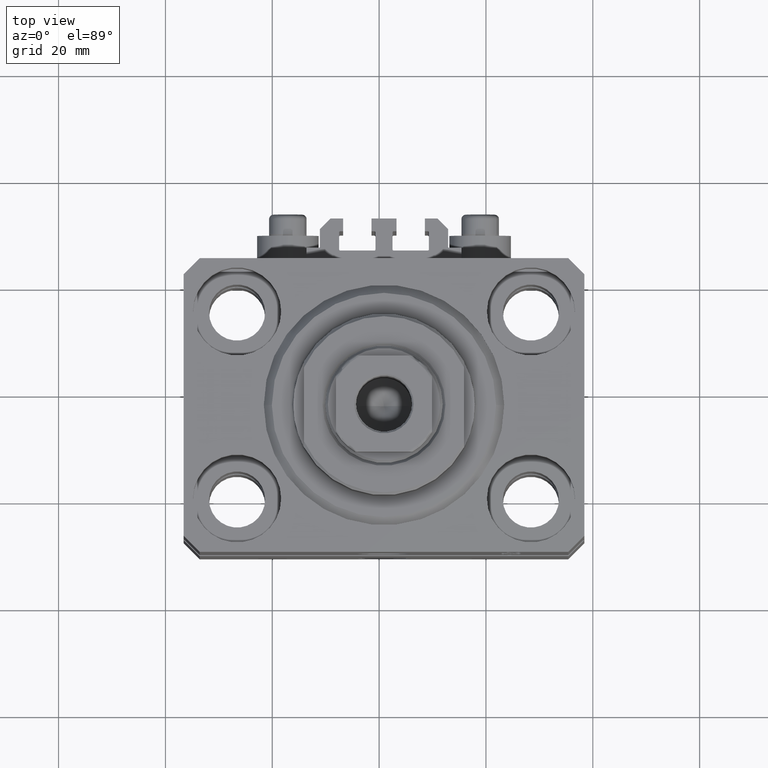
[diagram: clean part render]
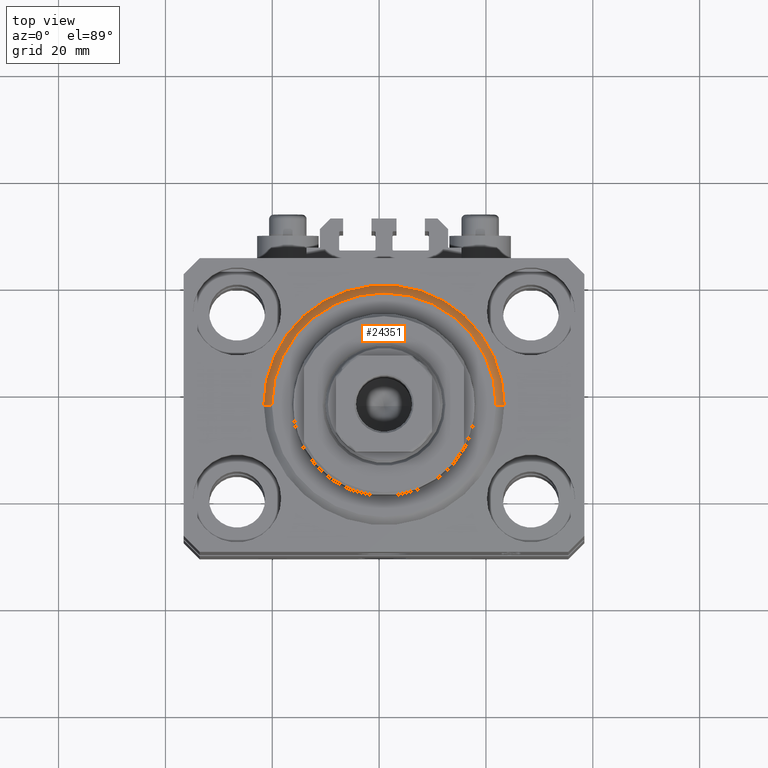
[diagram: same view with one face highlighted and labeled with its STEP entity id]
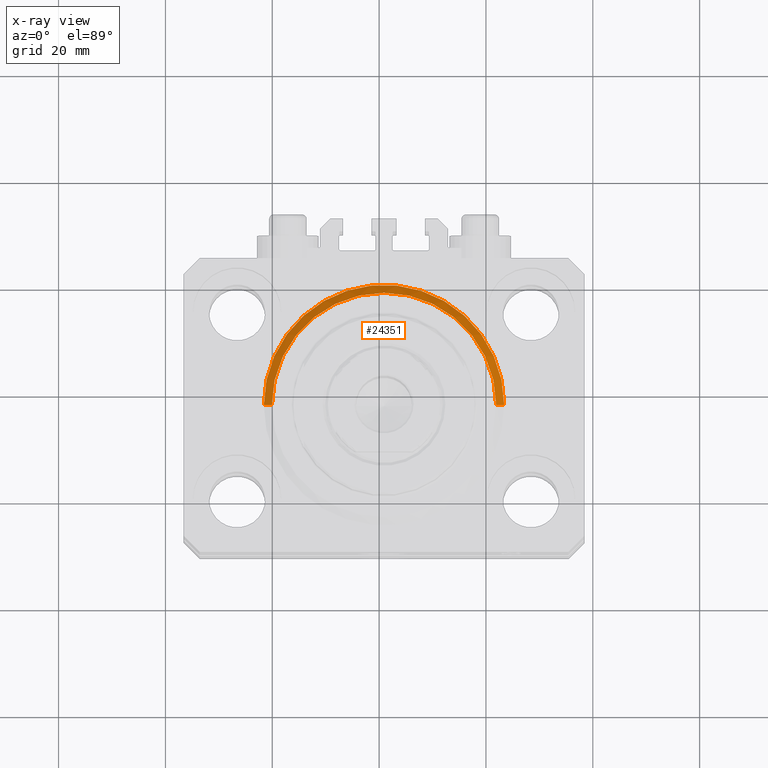
[diagram: x-ray of the same camera — body ghosted, the highlighted face saturated]
A machine part, top view. The second image highlights one B-rep face of the part: STEP entity #24351.
The next image is the same camera in x-ray: the body ghosted, the highlighted face saturated — about 0% of this face is hidden behind the body in this view.
In plain terms, the highlighted conical surface has half-angle 45 deg.
Its self-contained STEP definition (entity closure, byte-faithful):
#1103 = LINE ( 'NONE', #33312, #23780 ) ;
#1471 = EDGE_CURVE ( 'NONE', #39495, #28473, #29462, .T. ) ;
#2883 = CARTESIAN_POINT ( 'NONE',  ( 0.000000000000000000, 0.000000000000000000, 1.500000000000001332 ) ) ;
#3212 = ORIENTED_EDGE ( 'NONE', *, *, #4267, .F. ) ;
#3335 = EDGE_CURVE ( 'NONE', #28473, #23412, #32695, .T. ) ;
#4000 = CIRCLE ( 'NONE', #28199, 20.99999999999998934 ) ;
#4267 = EDGE_CURVE ( 'NONE', #34481, #39495, #4000, .T. ) ;
#4378 = DIRECTION ( 'NONE',  ( 1.000000000000000000, 0.000000000000000000, 0.000000000000000000 ) ) ;
#4709 = ORIENTED_EDGE ( 'NONE', *, *, #1471, .F. ) ;
#5830 = CARTESIAN_POINT ( 'NONE',  ( -22.50000000000000355, 0.000000000000000000, 1.500000000000001332 ) ) ;
#7207 = DIRECTION ( 'NONE',  ( 0.7071067811865500152, 0.000000000000000000, 0.7071067811865451302 ) ) ;
#8025 = DIRECTION ( 'NONE',  ( 1.000000000000000000, 0.000000000000000000, 0.000000000000000000 ) ) ;
#11742 = EDGE_CURVE ( 'NONE', #34481, #23412, #1103, .T. ) ;
#12290 = AXIS2_PLACEMENT_3D ( 'NONE', #33496, #15491, #4378 ) ;
#15491 = DIRECTION ( 'NONE',  ( -0.000000000000000000, -0.000000000000000000, 1.000000000000000000 ) ) ;
#18128 = ORIENTED_EDGE ( 'NONE', *, *, #3335, .F. ) ;
#21901 = DIRECTION ( 'NONE',  ( 1.000000000000000000, 0.000000000000000000, 0.000000000000000000 ) ) ;
#22185 = DIRECTION ( 'NONE',  ( -0.7071067811865500152, 8.659560562354963673E-17, 0.7071067811865451302 ) ) ;
#23412 = VERTEX_POINT ( 'NONE', #5830 ) ;
#23780 = VECTOR ( 'NONE', #22185, 1000.000000000000114 ) ;
#24351 = ADVANCED_FACE ( 'NONE', ( #26007 ), #25787, .T. ) ;
#25787 = CONICAL_SURFACE ( 'NONE', #39398, 22.50000000000000355, 0.7853981633974517207 ) ;
#25871 = VECTOR ( 'NONE', #7207, 1000.000000000000114 ) ;
#25900 = CARTESIAN_POINT ( 'NONE',  ( 22.50000000000000355, 0.000000000000000000, 1.500000000000001332 ) ) ;
#26007 = FACE_OUTER_BOUND ( 'NONE', #29195, .T. ) ;
#26622 = CARTESIAN_POINT ( 'NONE',  ( 0.000000000000000000, 0.000000000000000000, 0.000000000000000000 ) ) ;
#28199 = AXIS2_PLACEMENT_3D ( 'NONE', #26622, #29250, #21901 ) ;
#28473 = VERTEX_POINT ( 'NONE', #35599 ) ;
#29195 = EDGE_LOOP ( 'NONE', ( #3212, #41727, #18128, #4709 ) ) ;
#29250 = DIRECTION ( 'NONE',  ( -0.000000000000000000, -0.000000000000000000, -1.000000000000000000 ) ) ;
#29462 = LINE ( 'NONE', #25900, #25871 ) ;
#32695 = CIRCLE ( 'NONE', #12290, 22.50000000000000355 ) ;
#32954 = CARTESIAN_POINT ( 'NONE',  ( -20.99999999999998934, 2.663606788145492628E-15, 0.000000000000000000 ) ) ;
#33312 = CARTESIAN_POINT ( 'NONE',  ( -22.50000000000000355, 2.755455298081545172E-15, 1.500000000000001332 ) ) ;
#33496 = CARTESIAN_POINT ( 'NONE',  ( 0.000000000000000000, 0.000000000000000000, 1.500000000000001332 ) ) ;
#34481 = VERTEX_POINT ( 'NONE', #32954 ) ;
#35599 = CARTESIAN_POINT ( 'NONE',  ( 22.50000000000000355, 2.755455298081545172E-15, 1.500000000000001332 ) ) ;
#39398 = AXIS2_PLACEMENT_3D ( 'NONE', #2883, #40442, #8025 ) ;
#39495 = VERTEX_POINT ( 'NONE', #46183 ) ;
#40442 = DIRECTION ( 'NONE',  ( -0.000000000000000000, -0.000000000000000000, 1.000000000000000000 ) ) ;
#41727 = ORIENTED_EDGE ( 'NONE', *, *, #11742, .T. ) ;
#46183 = CARTESIAN_POINT ( 'NONE',  ( 20.99999999999998934, 0.000000000000000000, 0.000000000000000000 ) ) ;